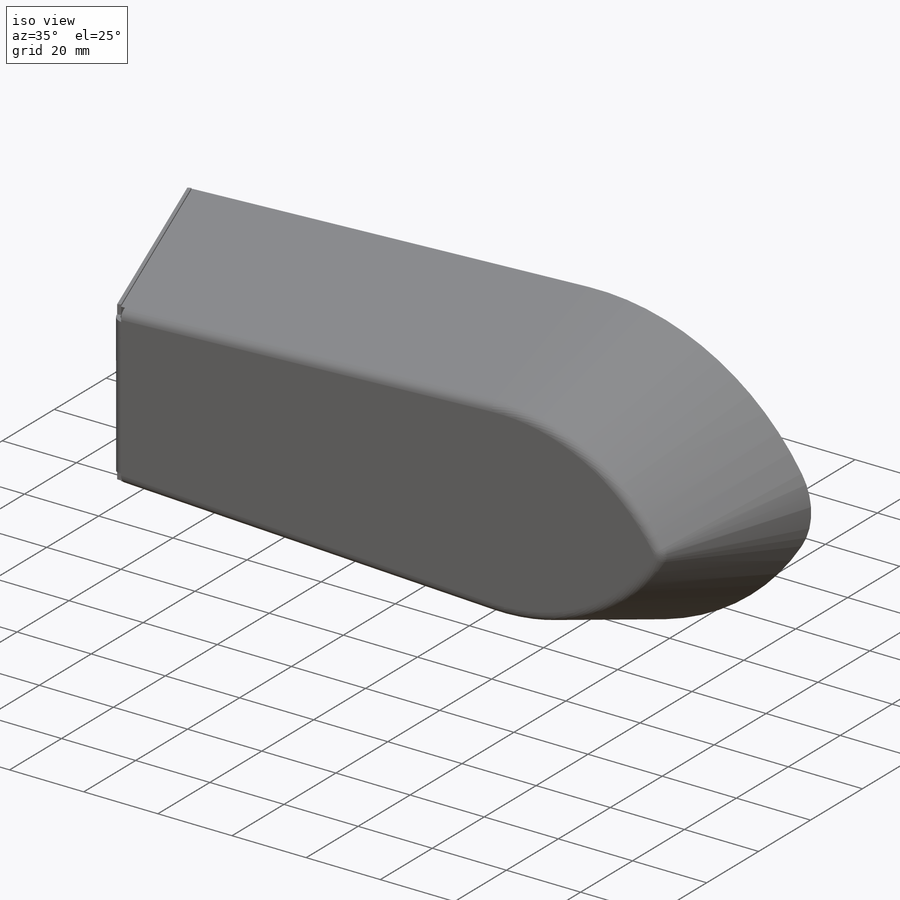
[diagram: iso view]
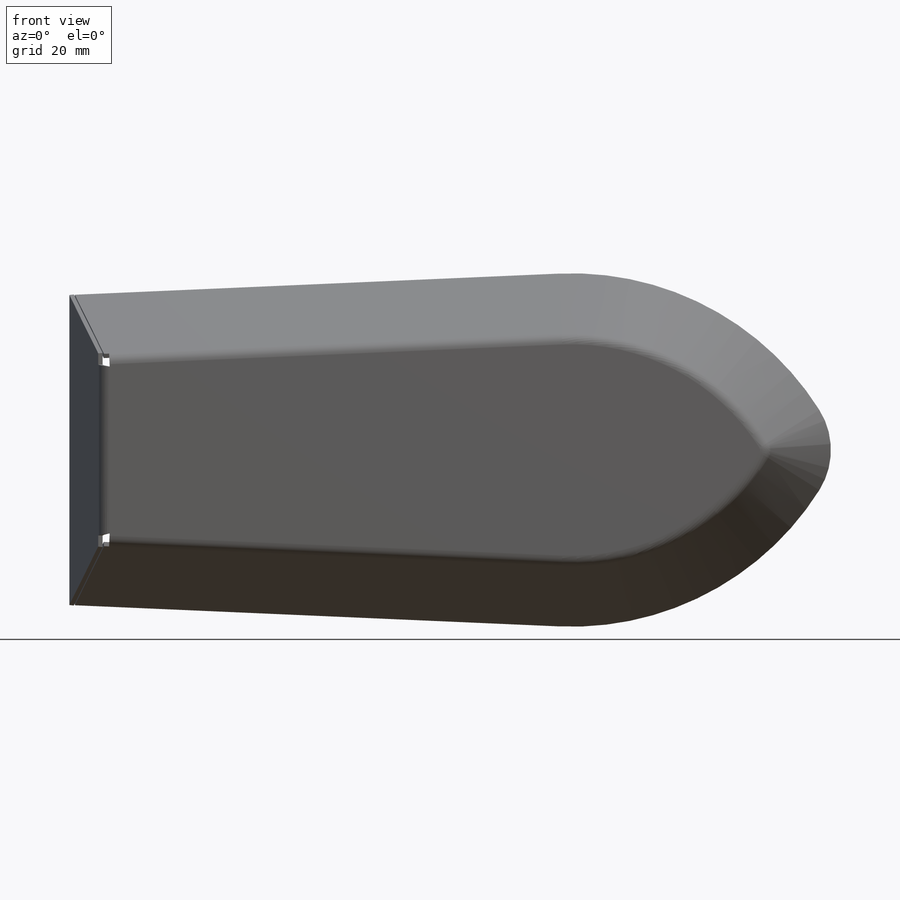
[diagram: front view]
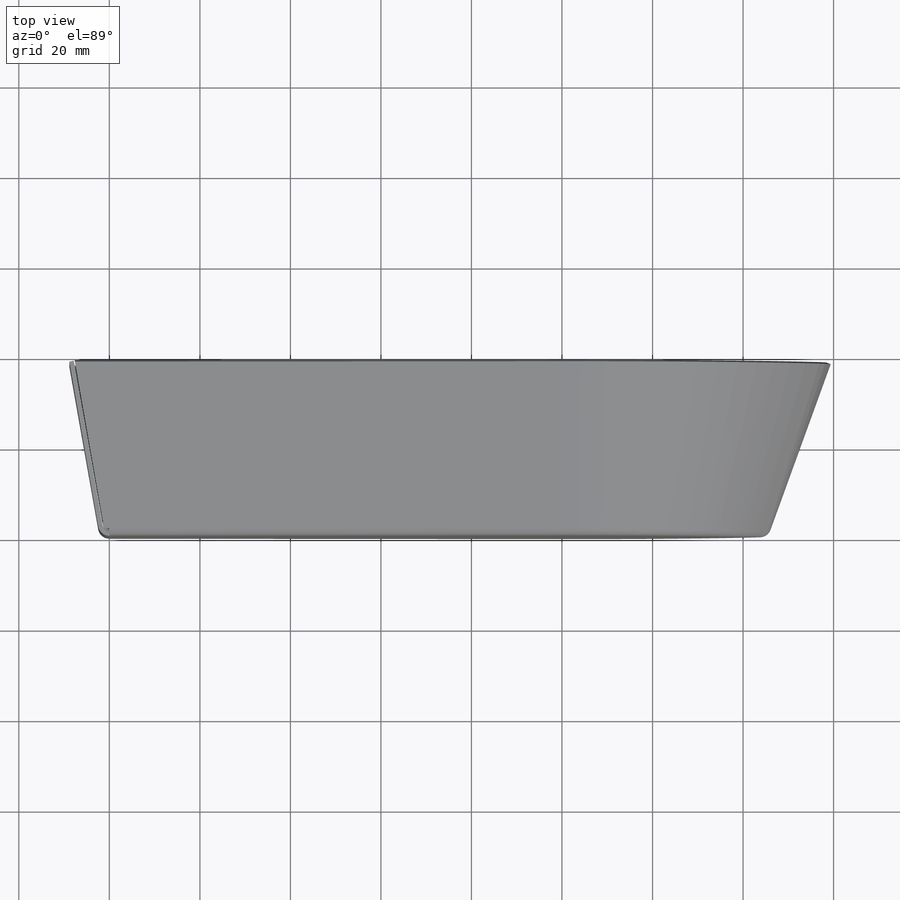
[diagram: top view]
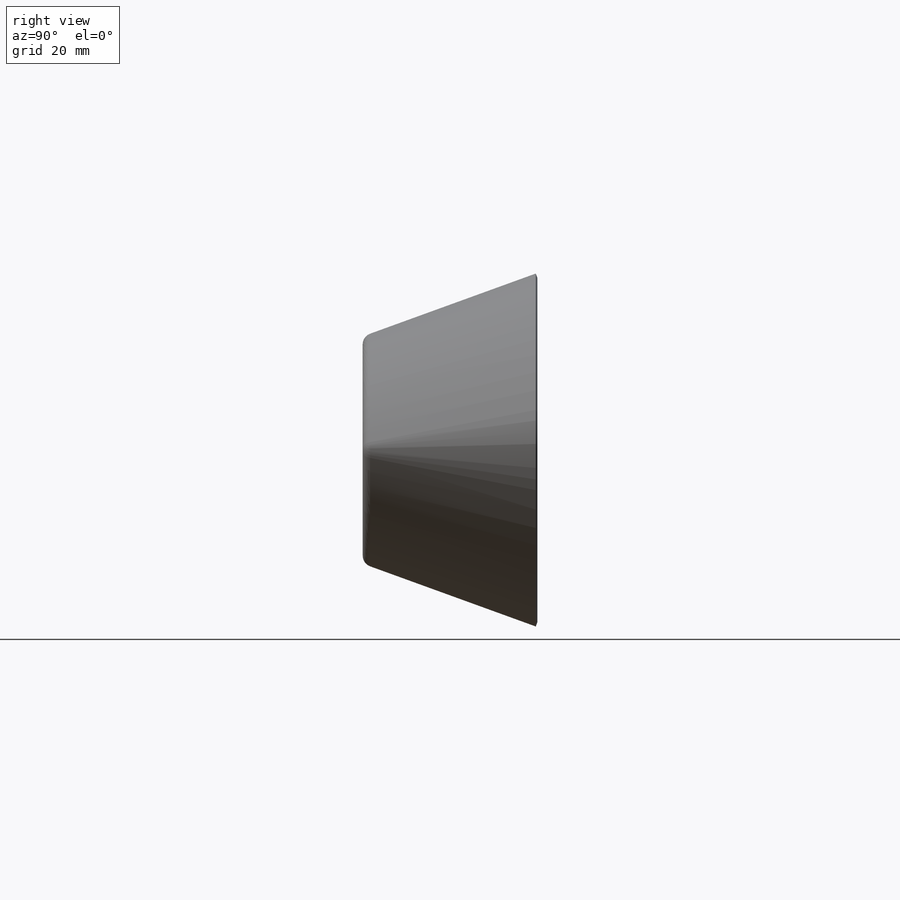
[diagram: right view]
SOLIDWORKS PART (.sldprt)
format: sldprt  version: not decoded by parser v0  size: 680,960 bytes
history: native  units: mm
features: sketch x37, sheet_metal_op x13, extrude x6, plane x3, material x1, cut_extrude x1 + 12 further entries (+7 scaffold rows collapsed; 12 parser-record rows omitted)
feature tree (92):
  scaffold x7  (default folders/planes/origin — collapsed)
  material  "Material <nicht festgelegt>"
  plane  "Ebene vorne"
  plane  "Ebene oben"
  plane  "Ebene rechts"
  sketch  "Skizze1"  dims[c1.D3=100.0mm c1.D5=2.0mm c1.D1=~83.667978mm c2.D1=~7.046972deg c3.D1=~87.266463mm c3.D2=40.0mm c3.D4=100.0mm c4.D1=1.5mm c4.D2=0.5 c4.D3=0.0deg c4.D6=~28.64789deg]
  sheet_metal_op  "Basis-Blech1"
  sketch  "Skizze13"  dims[c1.D1=~1221.730476mm c2.D1=1.5mm c2.D4=~1221.730476mm c2.D5=1.0 c2.D8=~0.028648deg c2.D9=~0.028648deg c3.D1=1.5mm c3.D2=~28.64789deg c3.D3=0.0deg c3.D6=10.0mm c3.D7=40.0mm c3.D8=1.0mm]
  sketch  "Skizze18"  dims[D1=0.0mm D2=0.0mm]
  extrude  "Aufsatz-Linear austragen2"  Depth=25mm
  sketch  "Skizze19"  dims[D1=0.0mm]
  extrude  "Aufsatz-Linear austragen3"  Depth=25mm
  sketch  "Skizze21"  dims[D1=~1396.263402mm D2=22.0mm]
  cut_extrude  "Schnitt-Linear austragen2"  [1 undecoded]
  sketch  "Kante-Lasche3"
  sketch  "Skizze16"  dims[c1.D1=38.0mm c2.D1=1.5mm c2.D4=~1396.263402mm c2.D5=2.0 c2.D8=~0.028648deg c2.D9=~0.028648deg c3.D1=1.5mm c3.D2=~28.64789deg c3.D3=0.0deg c3.D6=10.0mm c3.D7=38.0mm]
  sketch  "Skizze26"  dims[D1=0.0mm]
  extrude  "Aufsatz-Linear austragen4"  [1 undecoded]
  sketch  "Skizze27"  dims[D1=0.0mm]
  extrude  "Aufsatz-Linear austragen5"  [1 undecoded]
  sketch  "Skizze28"  dims[D1=0.0mm]
  extrude  "Aufsatz-Linear austragen6"  Depth=0.2mm
  sketch  "Skizze29"  dims[D1=0.0mm]
  extrude  "Aufsatz-Linear austragen7"  Depth=0.2mm
  sketch  "Biegung-Linien1"
  sketch  "Rahmen1"
  sheet_metal_op  "Blech1"
  "Abwicklung1"
  sketch  "Biegung-Linien2"
  sketch  "Rahmen2"
  parser-record x12  (decoder bookkeeping rows leaked as tree rows — omitted from the tree; the rows remain in map.json)
  sheet_metal_op  "Blech2"
  "Abwicklung1"
  sketch  "Biegung-Linien2"
  sketch  "Rahmen2"
  sheet_metal_op  "Blech3"
  "Abwicklung1"
  sketch  "Biegung-Linien2"
  sketch  "Rahmen2"
  sheet_metal_op  "Blech5"
  "Abwicklung1"
  sketch  "Biegung-Linien2"
  sketch  "Rahmen2"
  sheet_metal_op  "Blech6"
  "Abwicklung1"
  sketch  "Biegung-Linien2"
  sketch  "Rahmen2"
  sheet_metal_op  "Blech8"
  "Abwicklung1"
  sketch  "Biegung-Linien2"
  sketch  "Rahmen2"
  sheet_metal_op  "Blech9"
  "Abwicklung1"
  sketch  "Biegung-Linien3"
  sketch  "Rahmen3"
  sheet_metal_op  "Blech10"
  "Abwicklung10"
  sketch  "Biegung-Linien4"
  sketch  "Rahmen4"
  sheet_metal_op  "Blech11"
  "Abwicklung1"
  sketch  "Biegung-Linien2"
  sketch  "Rahmen2"
  sheet_metal_op  "Blech12"
  "Abwicklung1"
  sketch  "Biegung-Linien2"
  sketch  "Rahmen2"
  sheet_metal_op  "Blech13"
  "Abwicklung1"
  sketch  "Biegung-Linien2"
  sketch  "Rahmen2"
  sheet_metal_op  "Blech14"
  "Abwicklung1"
  sketch  "Biegung-Linien2"
  sketch  "Rahmen2"
decode coverage: 14 of 57 modeling features carry decoded parameters; 12 rows unclassified (native names shown)
note: ~ marks probable driven/reference dimensions
note: 3 parameter values undecoded
summary: no parameter record found for 3 features
note: suppression state not decoded; provenance and decode notes live in map.json
